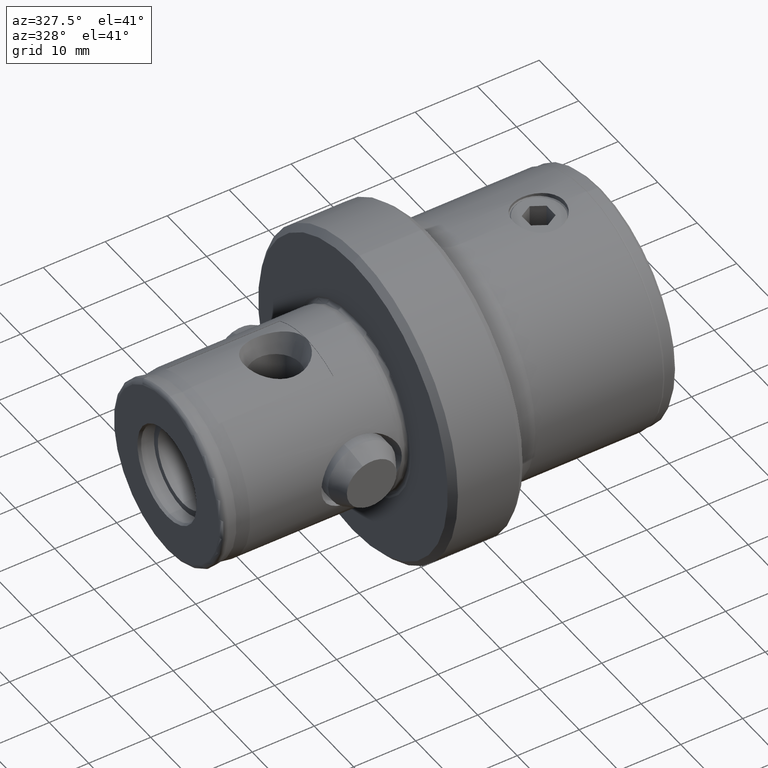
[diagram: clean part render]
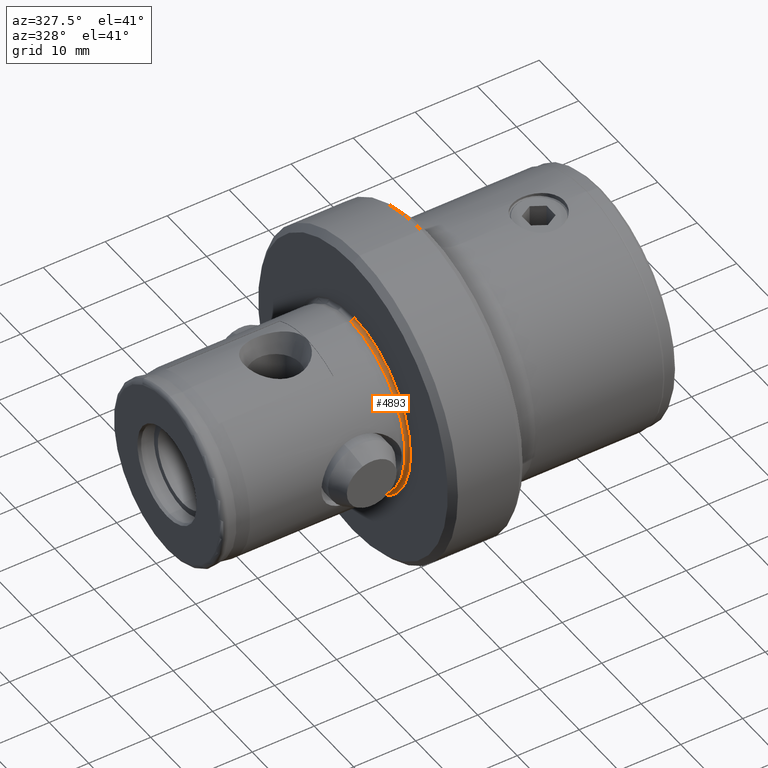
[diagram: same view with one face highlighted and labeled with its STEP entity id]
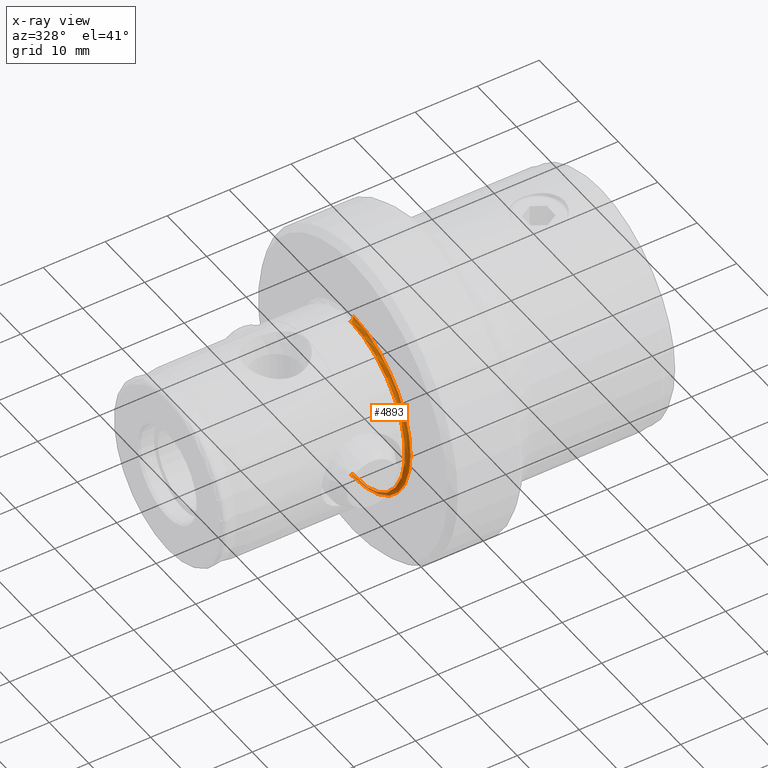
[diagram: x-ray of the same camera — body ghosted, the highlighted face saturated]
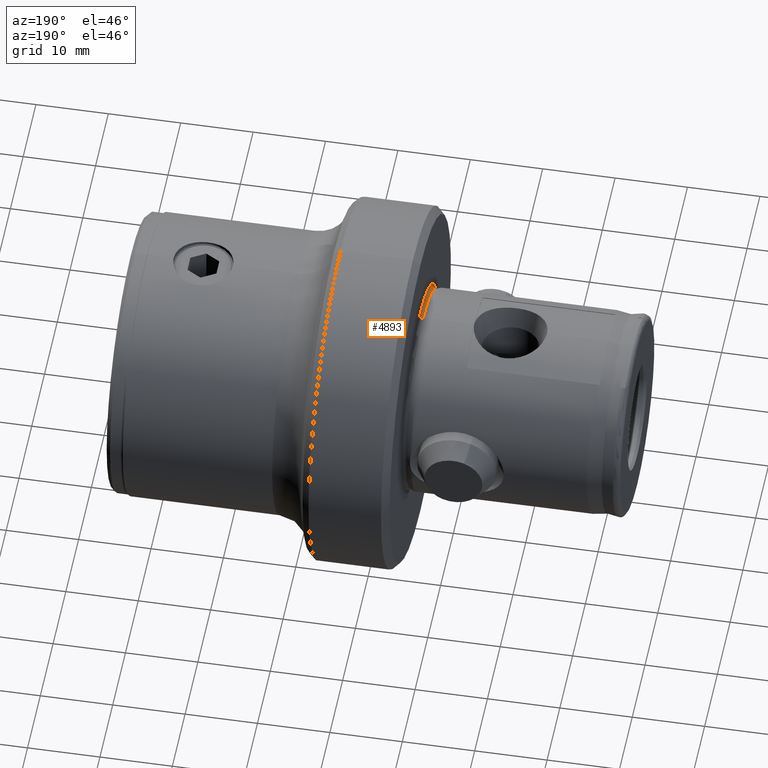
[diagram: same view with one face highlighted and labeled with its STEP entity id]
A machine part, auxiliary view. The second image highlights one B-rep face of the part: STEP entity #4893.
The next image is the same camera in x-ray: the body ghosted, the highlighted face saturated — about 6% of this face is hidden behind the body in this view.
A second angle (auxiliary view) of the same face is appended — the face is thin or edge-on in the first view.
In plain terms, the highlighted toroidal blend (fillet) surface has major radius 14.3 mm and minor (blend) radius 0.5 mm.
Its self-contained STEP definition (entity closure, byte-faithful):
#267 = TOROIDAL_SURFACE ( 'NONE', #2683, 14.30000000000000100, 0.4999999999999993300 ) ;
#271 = CARTESIAN_POINT ( 'NONE',  ( 29.59999999999999800, 0.0000000000000000000, 0.0000000000000000000 ) ) ;
#551 = CARTESIAN_POINT ( 'NONE',  ( 30.08296291314453400, 0.0000000000000000000, 0.0000000000000000000 ) ) ;
#662 = CARTESIAN_POINT ( 'NONE',  ( 29.59999999999999800, 0.0000000000000000000, 0.0000000000000000000 ) ) ;
#685 = EDGE_CURVE ( 'NONE', #2125, #985, #2501, .T. ) ;
#687 = DIRECTION ( 'NONE',  ( 0.0000000000000000000, 0.0000000000000000000, 1.000000000000000000 ) ) ;
#983 = DIRECTION ( 'NONE',  ( 0.0000000000000000000, 0.0000000000000000000, 1.000000000000000000 ) ) ;
#985 = VERTEX_POINT ( 'NONE', #1268 ) ;
#1005 = DIRECTION ( 'NONE',  ( 0.0000000000000000000, -1.000000000000000000, 0.0000000000000000000 ) ) ;
#1180 = CIRCLE ( 'NONE', #4617, 0.4999999999999987200 ) ;
#1268 = CARTESIAN_POINT ( 'NONE',  ( 30.08296291314453400, 0.0000000000000000000, 14.42940952255125500 ) ) ;
#1379 = FACE_OUTER_BOUND ( 'NONE', #2782, .T. ) ;
#1386 = EDGE_CURVE ( 'NONE', #3784, #2125, #2036, .T. ) ;
#1401 = ORIENTED_EDGE ( 'NONE', *, *, #685, .T. ) ;
#1723 = CARTESIAN_POINT ( 'NONE',  ( 29.59999999999999800, 1.690012582823347500E-015, -13.80000000000000100 ) ) ;
#1898 = ORIENTED_EDGE ( 'NONE', *, *, #3399, .F. ) ;
#1948 = DIRECTION ( 'NONE',  ( -1.000000000000000000, -0.0000000000000000000, -0.0000000000000000000 ) ) ;
#2036 = CIRCLE ( 'NONE', #3993, 0.4999999999999987200 ) ;
#2125 = VERTEX_POINT ( 'NONE', #4507 ) ;
#2371 = DIRECTION ( 'NONE',  ( 0.0000000000000000000, 0.0000000000000000000, 1.000000000000000000 ) ) ;
#2406 = DIRECTION ( 'NONE',  ( -0.0000000000000000000, 1.000000000000000000, 1.224646799147353200E-016 ) ) ;
#2501 = CIRCLE ( 'NONE', #3057, 14.42940952255125500 ) ;
#2683 = AXIS2_PLACEMENT_3D ( 'NONE', #662, #1948, #2371 ) ;
#2782 = EDGE_LOOP ( 'NONE', ( #1898, #4732, #1401, #4936 ) ) ;
#3057 = AXIS2_PLACEMENT_3D ( 'NONE', #551, #3538, #983 ) ;
#3234 = DIRECTION ( 'NONE',  ( -1.000000000000000000, -0.0000000000000000000, -0.0000000000000000000 ) ) ;
#3267 = VERTEX_POINT ( 'NONE', #3986 ) ;
#3399 = EDGE_CURVE ( 'NONE', #3784, #3267, #5181, .T. ) ;
#3538 = DIRECTION ( 'NONE',  ( -1.000000000000000000, -0.0000000000000000000, -0.0000000000000000000 ) ) ;
#3568 = CARTESIAN_POINT ( 'NONE',  ( 29.59999999999999800, 0.0000000000000000000, 14.30000000000000100 ) ) ;
#3784 = VERTEX_POINT ( 'NONE', #1723 ) ;
#3986 = CARTESIAN_POINT ( 'NONE',  ( 29.59999999999999800, 0.0000000000000000000, 13.80000000000000100 ) ) ;
#3993 = AXIS2_PLACEMENT_3D ( 'NONE', #4970, #2406, #5398 ) ;
#4004 = DIRECTION ( 'NONE',  ( 0.0000000000000000000, 0.0000000000000000000, -1.000000000000000000 ) ) ;
#4081 = AXIS2_PLACEMENT_3D ( 'NONE', #271, #3234, #687 ) ;
#4507 = CARTESIAN_POINT ( 'NONE',  ( 30.08296291314453400, 1.786051886282271700E-015, -14.42940952255125500 ) ) ;
#4617 = AXIS2_PLACEMENT_3D ( 'NONE', #3568, #1005, #4004 ) ;
#4732 = ORIENTED_EDGE ( 'NONE', *, *, #1386, .T. ) ;
#4893 = ADVANCED_FACE ( 'NONE', ( #1379 ), #267, .F. ) ;
#4936 = ORIENTED_EDGE ( 'NONE', *, *, #5270, .F. ) ;
#4970 = CARTESIAN_POINT ( 'NONE',  ( 29.59999999999999800, 1.751244922780715100E-015, -14.30000000000000100 ) ) ;
#5181 = CIRCLE ( 'NONE', #4081, 13.80000000000000100 ) ;
#5270 = EDGE_CURVE ( 'NONE', #3267, #985, #1180, .T. ) ;
#5398 = DIRECTION ( 'NONE',  ( 0.0000000000000000000, -1.224646799147353700E-016, 1.000000000000000000 ) ) ;